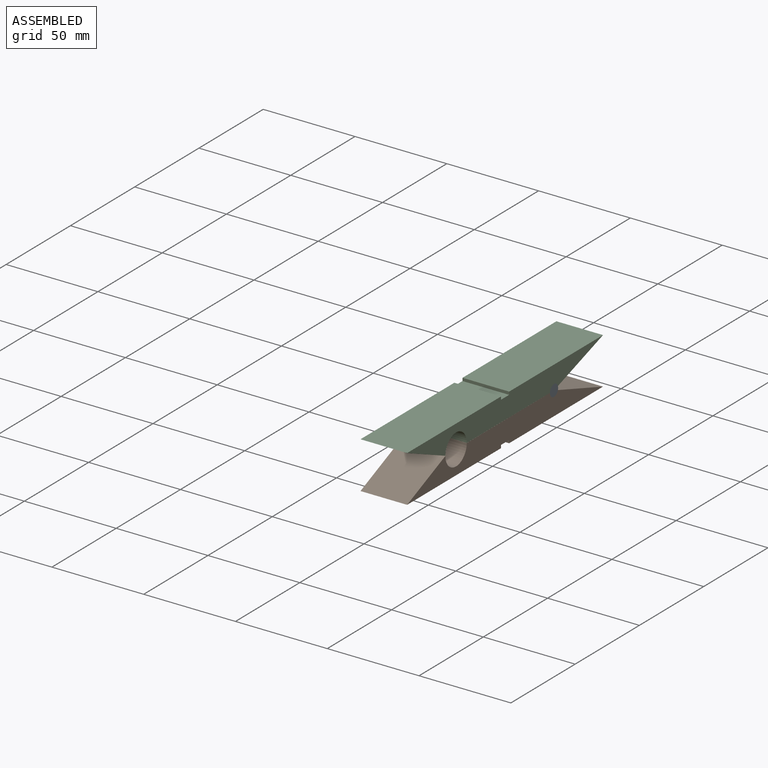
[diagram: assembled view]
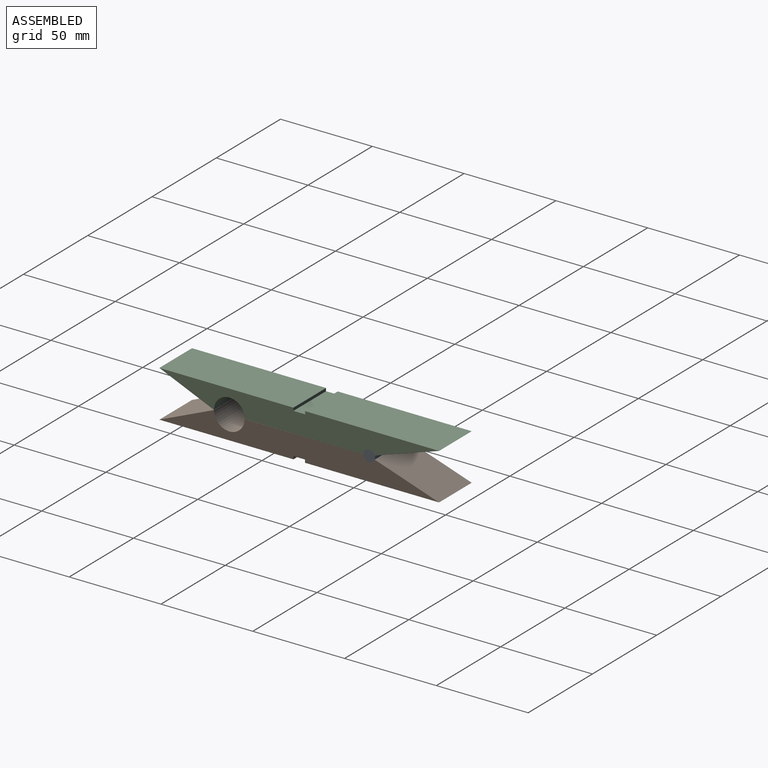
[diagram: assembled view, second angle]
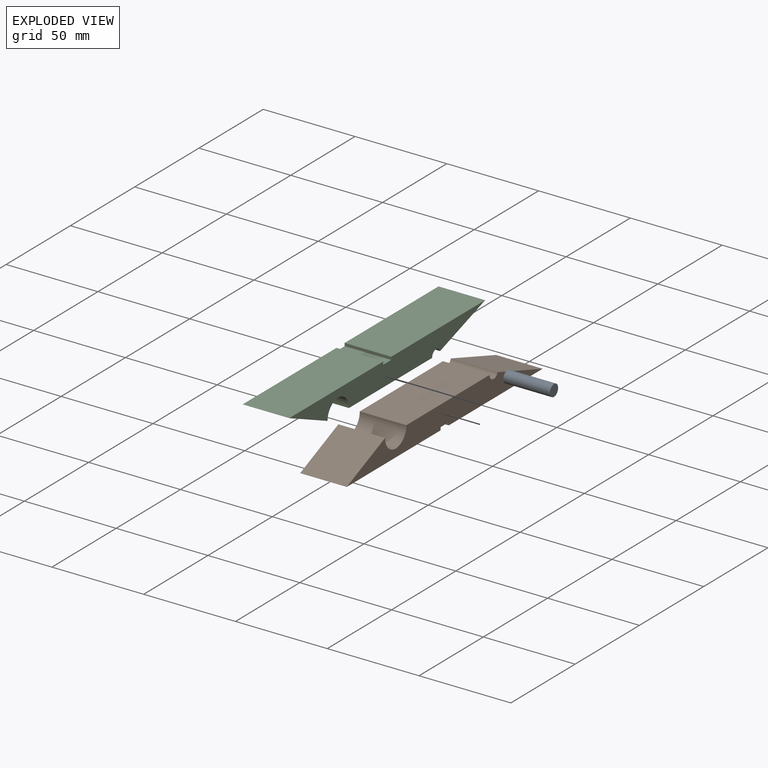
[diagram: exploded view]
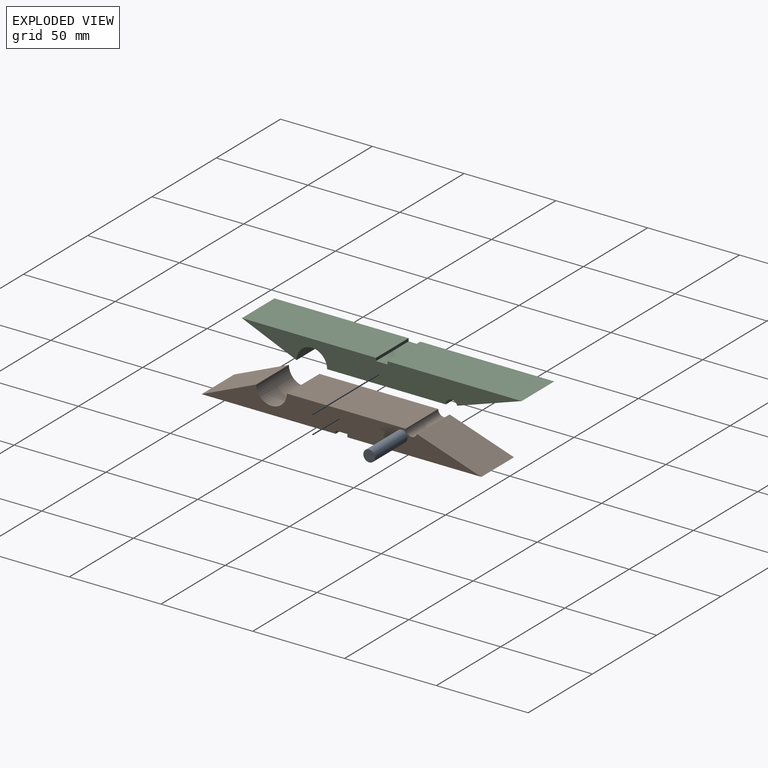
[diagram: exploded view, second angle]
ASSEMBLY  parts=3 mates=2
PART A: 3 faces, bbox 25.4x6.4x6.4 mm
  f0: cylinder r=3.17mm len=25.4mm, axis (-1,0,0), area 506.7mm2, adj f1,f2
  f1: plane 6.35x6.35mm, normal (1,0,0), area 31.7mm2, adj f0
  f2: plane 6.35x6.35mm, normal (-1,0,0), area 31.7mm2, adj f0
PART B: 12 faces, bbox 25.4x152.4x12.7 mm
  f0: plane 25.4x6.35mm, normal (0,0,-1), area 161.3mm2, adj f1,f9,f10,f11
  f1: plane 25.4x1.59mm, normal (0,-1,0), area 40.3mm2, adj f0,f2,f10,f11
  f2: plane 73.03x25.4mm, normal (0,0,-1), area 1854.8mm2, adj f1,f3,f10,f11
  f3: plane 35.09x25.4mm, normal (0,0.32,0.95), area 939.4mm2, adj f2,f4,f10,f11
  f4: cylinder r=3.17mm len=25.4mm, axis (-1,0,0), area 227.4mm2, adj f3,f5,f10,f11
  f5: plane 64.69x25.4mm, normal (0,0,1), area 1643.2mm2, adj f4,f6,f10,f11
  f6: cylinder r=8.33mm len=25.4mm, axis (-1,0,0), area 664.8mm2, adj f5,f7,f10,f11
  f7: plane 29.77x25.4mm, normal (0,-0.39,0.92), area 822.1mm2, adj f6,f8,f10,f11
  f8: plane 73.03x25.4mm, normal (0,0,-1), area 1854.8mm2, adj f7,f9,f10,f11
  f9: plane 25.4x1.59mm, normal (0,1,0), area 40.3mm2, adj f0,f8,f10,f11
  f10: plane 152.4x12.7mm, normal (1,0,0), area 1371.2mm2, adj f0,f1,f2,f3,f4,f5,f6,f7
  f11: plane 152.4x12.7mm, normal (-1,0,0), area 1371.2mm2, adj f0,f1,f2,f3,f4,f5,f6,f7
PART C: same geometry as B
PLACE A t=(19.64,54.91,3.56)mm
PLACE B t=(19.64,16.81,-2.79)mm fixed
PLACE C rot(axis=(0,-1,0),180deg) t=(45.04,16.82,9.94)mm
MATE revolute C.f4 <-> A.f0  axis (1,0,0) through (45.04,54.91,3.56)mm
MATE revolute A.f0 <-> B.f4  axis (1,0,0) through (45.04,54.91,3.56)mm
